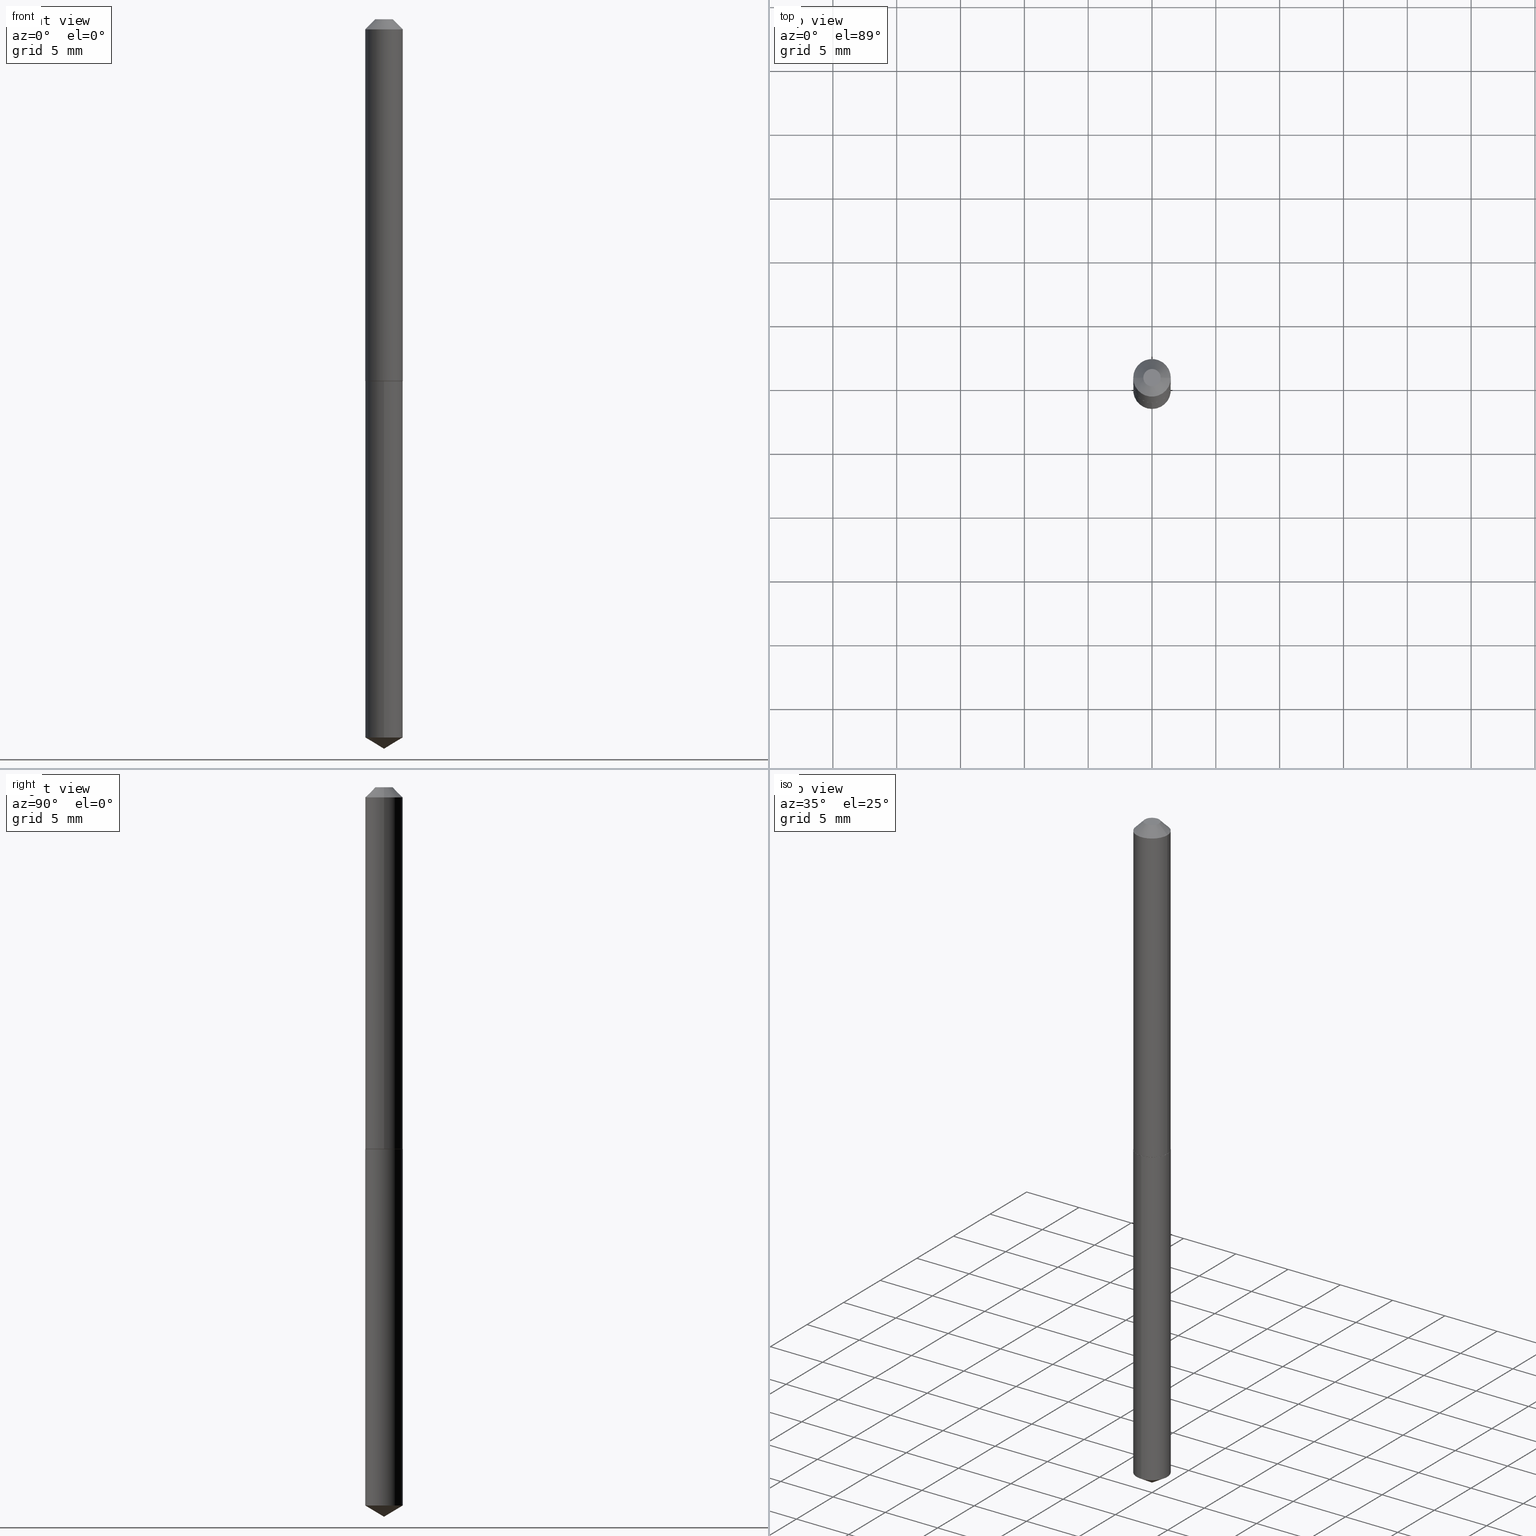
[diagram: canonical four-view strip — front | top / right | iso, engineering-drawing reading convention]
A machine part, canonical four-view strip (front | top / right | iso — engineering-drawing reading convention). The complete STEP part file that produces these views, byte-faithful:
ISO-10303-21;
HEADER;
FILE_DESCRIPTION (( 'STEP AP203' ),
    '1' );
FILE_NAME ('51032.STEP',
    '2024-04-22T18:15:48',
    ( '' ),
    ( '' ),
    'SwSTEP 2.0',
    'SolidWorks 2023',
    '' );
FILE_SCHEMA (( 'CONFIG_CONTROL_DESIGN' ));
ENDSEC;

DATA;
#1 =( NAMED_UNIT ( * ) SI_UNIT ( $, .STERADIAN. ) SOLID_ANGLE_UNIT ( ) );
#2 = DATE_TIME_ROLE ( 'classification_date' ) ;
#3 = FACE_OUTER_BOUND ( 'NONE', #266, .T. ) ;
#4 = ORIENTED_EDGE ( 'NONE', *, *, #231, .F. ) ;
#5 = ADVANCED_FACE ( 'NONE', ( #232 ), #302, .T. ) ;
#6 = VECTOR ( 'NONE', #119, 39.37007874015748143 ) ;
#7 = DIRECTION ( 'NONE',  ( 1.000000000000000000, -6.982962677686265922E-15, 0.000000000000000000 ) ) ;
#8 = LOCAL_TIME ( 14, 15, 48.00000000000000000, #194 ) ;
#9 = EDGE_CURVE ( 'NONE', #322, #239, #226, .T. ) ;
#10 = ORIENTED_EDGE ( 'NONE', *, *, #304, .T. ) ;
#11 = DIRECTION ( 'NONE',  ( -2.445468806185136877E-29, 3.491481338843145188E-15, 1.000000000000000000 ) ) ;
#12 = ORIENTED_EDGE ( 'NONE', *, *, #155, .T. ) ;
#13 = DIRECTION ( 'NONE',  ( 1.000000000000000000, -6.982962677686264344E-15, 0.000000000000000000 ) ) ;
#14 = APPLICATION_CONTEXT ( 'configuration controlled 3d designs of mechanical parts and assemblies' ) ;
#15 = ADVANCED_FACE ( 'NONE', ( #107 ), #58, .T. ) ;
#16 = DIRECTION ( 'NONE',  ( -0.7071067811865451302, 2.468850131082231817E-15, -0.7071067811865499042 ) ) ;
#17 = CONICAL_SURFACE ( 'NONE', #53, 65.52281426576863055, 1.029744258676655866 ) ;
#18 = ORIENTED_EDGE ( 'NONE', *, *, #188, .F. ) ;
#19 = LOCAL_TIME ( 14, 15, 48.00000000000000000, #126 ) ;
#20 = AXIS2_PLACEMENT_3D ( 'NONE', #179, #325, #305 ) ;
#21 = DIRECTION ( 'NONE',  ( -2.445468806185136597E-29, 3.491481338843145583E-15, 1.000000000000000000 ) ) ;
#22 = ORIENTED_EDGE ( 'NONE', *, *, #237, .T. ) ;
#23 = DIMENSIONAL_EXPONENTS ( 1.000000000000000000, 0.000000000000000000, 0.000000000000000000, 0.000000000000000000, 0.000000000000000000, 0.000000000000000000, 0.000000000000000000 ) ;
#24 = SHAPE_DEFINITION_REPRESENTATION ( #76, #360 ) ;
#25 = LINE ( 'NONE', #284, #191 ) ;
#26 = CALENDAR_DATE ( 2024, 22, 4 ) ;
#27 = DIRECTION ( 'NONE',  ( -6.982962677686264344E-15, -1.000000000000000000, 3.468864327941583565E-15 ) ) ;
#28 = APPROVAL_PERSON_ORGANIZATION ( #48, #81, #122 ) ;
#29 = DIRECTION ( 'NONE',  ( 1.000000000000000000, 0.000000000000000000, 0.000000000000000000 ) ) ;
#30 = DIRECTION ( 'NONE',  ( 0.7071067811864267805, -2.468850131080992517E-15, 0.7071067811866682540 ) ) ;
#31 =( LENGTH_UNIT ( ) NAMED_UNIT ( * ) SI_UNIT ( $, .METRE. ) );
#32 = VECTOR ( 'NONE', #11, 39.37007874015748143 ) ;
#33 = CIRCLE ( 'NONE', #352, 0.05750000000000014128 ) ;
#34 = SECURITY_CLASSIFICATION_LEVEL ( 'unclassified' ) ;
#35 = DIRECTION ( 'NONE',  ( -1.000000000000000000, 6.982962677686266711E-15, 0.000000000000000000 ) ) ;
#36 = VERTEX_POINT ( 'NONE', #74 ) ;
#37 = ADVANCED_FACE ( 'NONE', ( #66 ), #168, .T. ) ;
#38 = DIRECTION ( 'NONE',  ( -1.000000000000000000, 6.982962677686265922E-15, -4.876176775795935793E-29 ) ) ;
#39 = ORIENTED_EDGE ( 'NONE', *, *, #336, .T. ) ;
#40 = CC_DESIGN_PERSON_AND_ORGANIZATION_ASSIGNMENT ( #282, #118, ( #116 ) ) ;
#41 = DIRECTION ( 'NONE',  ( 2.438088387897960049E-29, -3.491481338843145188E-15, -1.000000000000000000 ) ) ;
#42 = AXIS2_PLACEMENT_3D ( 'NONE', #89, #283, #220 ) ;
#43 = DIRECTION ( 'NONE',  ( -2.445398351261919624E-29, 3.491582234303237640E-15, 1.000000000000000000 ) ) ;
#44 = ADVANCED_FACE ( 'NONE', ( #3 ), #139, .T. ) ;
#45 = ORIENTED_EDGE ( 'NONE', *, *, #326, .T. ) ;
#46 = EDGE_LOOP ( 'NONE', ( #205, #319, #347, #47 ) ) ;
#47 = ORIENTED_EDGE ( 'NONE', *, *, #304, .F. ) ;
#48 = PERSON_AND_ORGANIZATION ( #221, #184 ) ;
#49 = AXIS2_PLACEMENT_3D ( 'NONE', #368, #166, #291 ) ;
#50 = AXIS2_PLACEMENT_3D ( 'NONE', #270, #381, #110 ) ;
#51 = ADVANCED_FACE ( 'NONE', ( #258 ), #17, .T. ) ;
#52 = CARTESIAN_POINT ( 'NONE',  ( 2.727920453299520488E-29, -3.894747433479529868E-15, -1.115500000000000158 ) ) ;
#53 = AXIS2_PLACEMENT_3D ( 'NONE', #234, #321, #344 ) ;
#54 = CIRCLE ( 'NONE', #42, 0.05800000000000000294 ) ;
#55 = CALENDAR_DATE ( 2024, 22, 4 ) ;
#56 = CARTESIAN_POINT ( 'NONE',  ( 7.642090019328602662E-31, -1.091087918388490267E-16, -0.03125000000000020817 ) ) ;
#57 = ORIENTED_EDGE ( 'NONE', *, *, #336, .F. ) ;
#58 = CONICAL_SURFACE ( 'NONE', #91, 0.05800000000000014172, 0.7853981633972775267 ) ;
#59 = CC_DESIGN_SECURITY_CLASSIFICATION ( #178, ( #320 ) ) ;
#60 = PERSON_AND_ORGANIZATION ( #221, #184 ) ;
#61 = PERSON_AND_ORGANIZATION_ROLE ( 'design_owner' ) ;
#62 = CIRCLE ( 'NONE', #215, 0.05800000000000014172 ) ;
#63 = DIRECTION ( 'NONE',  ( -1.000000000000000000, 6.982962677686266711E-15, 0.000000000000000000 ) ) ;
#64 = VERTEX_POINT ( 'NONE', #300 ) ;
#65 = EDGE_CURVE ( 'NONE', #315, #104, #249, .T. ) ;
#66 = FACE_OUTER_BOUND ( 'NONE', #371, .T. ) ;
#67 = CARTESIAN_POINT ( 'NONE',  ( 7.642090019328602662E-31, -1.091087918388490267E-16, -0.03125000000000020817 ) ) ;
#68 = VERTEX_POINT ( 'NONE', #143 ) ;
#69 = DIRECTION ( 'NONE',  ( -2.445468806185136597E-29, 3.491481338843145583E-15, 1.000000000000000000 ) ) ;
#70 = ORIENTED_EDGE ( 'NONE', *, *, #366, .F. ) ;
#71 = AXIS2_PLACEMENT_3D ( 'NONE', #207, #43, #293 ) ;
#72 = DIRECTION ( 'NONE',  ( 2.445468806185136597E-29, -3.491481338843145583E-15, -1.000000000000000000 ) ) ;
#73 = EDGE_LOOP ( 'NONE', ( #109, #301, #229, #260 ) ) ;
#74 = CARTESIAN_POINT ( 'NONE',  ( -4.050118353057761076E-16, -0.05800000000000389566, -1.116000000000000103 ) ) ;
#75 = ORIENTED_EDGE ( 'NONE', *, *, #366, .T. ) ;
#76 = PRODUCT_DEFINITION_SHAPE ( 'NONE', 'NONE',  #116 ) ;
#77 = CARTESIAN_POINT ( 'NONE',  ( 5.417002991141352928E-29, -7.734266080612855846E-15, -2.215150084096401795 ) ) ;
#78 = DIRECTION ( 'NONE',  ( -2.445468806185136597E-29, 3.491481338843145583E-15, 1.000000000000000000 ) ) ;
#79 = LOCAL_TIME ( 14, 15, 48.00000000000000000, #156 ) ;
#80 = DIRECTION ( 'NONE',  ( 1.000000000000000000, -6.982962677686265922E-15, 0.000000000000000000 ) ) ;
#81 = APPROVAL ( #95, 'UNSPECIFIED' ) ;
#82 = DIRECTION ( 'NONE',  ( 1.000000000000000000, -6.982962677686264344E-15, 0.000000000000000000 ) ) ;
#83 =( CONVERSION_BASED_UNIT ( 'INCH', #307 ) LENGTH_UNIT ( ) NAMED_UNIT ( #23 ) );
#84 = ADVANCED_FACE ( 'NONE', ( #134 ), #342, .F. ) ;
#85 = EDGE_LOOP ( 'NONE', ( #199, #75, #10, #298 ) ) ;
#86 = APPROVAL_PERSON_ORGANIZATION ( #217, #373, #334 ) ;
#87 = APPROVAL_ROLE ( '' ) ;
#88 = APPROVAL_DATE_TIME ( #361, #195 ) ;
#89 = CARTESIAN_POINT ( 'NONE',  ( 2.729143187702612729E-29, -3.896493174148951371E-15, -1.116000000000000103 ) ) ;
#90 = PERSON_AND_ORGANIZATION ( #221, #184 ) ;
#91 = AXIS2_PLACEMENT_3D ( 'NONE', #316, #69, #7 ) ;
#92 = CC_DESIGN_APPROVAL ( #373, ( #116 ) ) ;
#93 = DIRECTION ( 'NONE',  ( 0.000000000000000000, 0.000000000000000000, 1.000000000000000000 ) ) ;
#94 = FACE_OUTER_BOUND ( 'NONE', #169, .T. ) ;
#95 = APPROVAL_STATUS ( 'not_yet_approved' ) ;
#96 = CC_DESIGN_DATE_AND_TIME_ASSIGNMENT ( #264, #2, ( #178 ) ) ;
#97 = DIRECTION ( 'NONE',  ( 1.000000000000000000, -6.982962677686266711E-15, 0.000000000000000000 ) ) ;
#98 = LINE ( 'NONE', #297, #124 ) ;
#99 = CIRCLE ( 'NONE', #183, 0.05800000000000000294 ) ;
#100 = AXIS2_PLACEMENT_3D ( 'NONE', #390, #128, #339 ) ;
#101 = DIRECTION ( 'NONE',  ( -2.438088387897960049E-29, 3.491481338843145188E-15, 1.000000000000000000 ) ) ;
#102 = ORIENTED_EDGE ( 'NONE', *, *, #388, .F. ) ;
#103 = DIRECTION ( 'NONE',  ( 1.000000000000000000, -6.982962677686265922E-15, 4.876176775795935793E-29 ) ) ;
#104 = VERTEX_POINT ( 'NONE', #374 ) ;
#105 = CARTESIAN_POINT ( 'NONE',  ( 7.642090019328602662E-31, -1.091087918388490267E-16, -0.03125000000000020817 ) ) ;
#106 = VERTEX_POINT ( 'NONE', #141 ) ;
#107 = FACE_OUTER_BOUND ( 'NONE', #350, .T. ) ;
#108 = CIRCLE ( 'NONE', #20, 0.05800000000000000294 ) ;
#109 = ORIENTED_EDGE ( 'NONE', *, *, #113, .F. ) ;
#110 = DIRECTION ( 'NONE',  ( -6.982962677686265922E-15, -1.000000000000000000, 2.355041373848502747E-15 ) ) ;
#111 = CARTESIAN_POINT ( 'NONE',  ( 4.121147867408853444E-16, 0.05799999999999611022, -1.116000000000000325 ) ) ;
#112 = ADVANCED_FACE ( 'NONE', ( #228 ), #171, .T. ) ;
#113 = EDGE_CURVE ( 'NONE', #315, #106, #98, .T. ) ;
#114 = LINE ( 'NONE', #244, #6 ) ;
#115 = VECTOR ( 'NONE', #254, 39.37007874015748143 ) ;
#116 = PRODUCT_DEFINITION ( 'UNKNOWN', '', #320, #227 ) ;
#117 = CARTESIAN_POINT ( 'NONE',  ( -0.05750000000000014128, -3.485281873912781806E-15, -1.116000000000000325 ) ) ;
#118 = PERSON_AND_ORGANIZATION_ROLE ( 'creator' ) ;
#119 = DIRECTION ( 'NONE',  ( 0.7071067811865451302, -7.319954787623248157E-15, -0.7071067811865499042 ) ) ;
#120 = EDGE_LOOP ( 'NONE', ( #382, #202 ) ) ;
#121 = CC_DESIGN_PERSON_AND_ORGANIZATION_ASSIGNMENT ( #90, #173, ( #320 ) ) ;
#122 = APPROVAL_ROLE ( '' ) ;
#123 = DIRECTION ( 'NONE',  ( -2.445468806185136597E-29, 3.491481338843145583E-15, 1.000000000000000000 ) ) ;
#124 = VECTOR ( 'NONE', #349, 39.37007874015748143 ) ;
#125 = CIRCLE ( 'NONE', #147, 0.05800000000000014172 ) ;
#126 = COORDINATED_UNIVERSAL_TIME_OFFSET ( 5, 0, .BEHIND. ) ;
#127 = PERSON_AND_ORGANIZATION_ROLE ( 'creator' ) ;
#128 = DIRECTION ( 'NONE',  ( -2.445468806185136597E-29, 3.491481338843145583E-15, 1.000000000000000000 ) ) ;
#129 = CARTESIAN_POINT ( 'NONE',  ( -0.05800000000000000294, -1.589813325918329827E-15, -0.03125000000000020817 ) ) ;
#130 = ORIENTED_EDGE ( 'NONE', *, *, #329, .T. ) ;
#131 = CONICAL_SURFACE ( 'NONE', #327, 0.05800000000000000294, 0.7853981633974449483 ) ;
#132 = CC_DESIGN_APPROVAL ( #195, ( #320 ) ) ;
#133 = MANIFOLD_SOLID_BREP ( 'Body-Move/Copy2[1]', #378 ) ;
#134 = FACE_OUTER_BOUND ( 'NONE', #140, .T. ) ;
#135 = DIRECTION ( 'NONE',  ( 1.000000000000000000, -6.982962677686266711E-15, 4.876176775795935793E-29 ) ) ;
#136 = ORIENTED_EDGE ( 'NONE', *, *, #9, .F. ) ;
#137 = AXIS2_PLACEMENT_3D ( 'NONE', #256, #367, #376 ) ;
#138 = APPROVAL_PERSON_ORGANIZATION ( #185, #195, #87 ) ;
#139 = CYLINDRICAL_SURFACE ( 'NONE', #337, 0.05800000000000007233 ) ;
#140 = EDGE_LOOP ( 'NONE', ( #317, #208 ) ) ;
#141 = CARTESIAN_POINT ( 'NONE',  ( -0.05800000000000014172, -3.482632646738670605E-15, -1.115500000000000158 ) ) ;
#142 = ORIENTED_EDGE ( 'NONE', *, *, #231, .T. ) ;
#143 = CARTESIAN_POINT ( 'NONE',  ( 0.02675000000000000294, -3.452679985749932326E-16, -2.449293598276105174E-19 ) ) ;
#144 = PRODUCT ( '51032', '51032', '', ( #222 ) ) ;
#145 = FACE_OUTER_BOUND ( 'NONE', #46, .T. ) ;
#146 = DIRECTION ( 'NONE',  ( 1.000000000000000000, -6.982962677686265922E-15, 0.000000000000000000 ) ) ;
#147 = AXIS2_PLACEMENT_3D ( 'NONE', #384, #152, #211 ) ;
#148 = ORIENTED_EDGE ( 'NONE', *, *, #363, .F. ) ;
#149 = ADVANCED_FACE ( 'NONE', ( #346 ), #201, .F. ) ;
#150 = CARTESIAN_POINT ( 'NONE',  ( 5.989671091818642381E-48, -8.551662891793931527E-34, -2.449293598294701954E-19 ) ) ;
#151 = DIRECTION ( 'NONE',  ( 1.000000000000000000, -6.982962677686266711E-15, 0.000000000000000000 ) ) ;
#152 = DIRECTION ( 'NONE',  ( -2.445468806185136597E-29, 3.491481338843145583E-15, 1.000000000000000000 ) ) ;
#153 = VECTOR ( 'NONE', #180, 39.37007874015748854 ) ;
#154 = DIRECTION ( 'NONE',  ( -2.445468806185136597E-29, 3.491481338843145583E-15, 1.000000000000000000 ) ) ;
#155 = EDGE_CURVE ( 'NONE', #106, #377, #296, .T. ) ;
#156 = COORDINATED_UNIVERSAL_TIME_OFFSET ( 5, 0, .BEHIND. ) ;
#157 = CARTESIAN_POINT ( 'NONE',  ( 0.05800000000000014172, -4.299759268785333684E-15, -1.115500000000000158 ) ) ;
#158 = VERTEX_POINT ( 'NONE', #265 ) ;
#159 = AXIS2_PLACEMENT_3D ( 'NONE', #359, #223, #252 ) ;
#160 = DATE_AND_TIME ( #26, #8 ) ;
#161 = ADVANCED_FACE ( 'NONE', ( #204 ), #131, .T. ) ;
#162 = CC_DESIGN_PERSON_AND_ORGANIZATION_ASSIGNMENT ( #200, #318, ( #178 ) ) ;
#163 = PLANE ( 'NONE',  #159 ) ;
#164 = ADVANCED_FACE ( 'NONE', ( #197 ), #190, .T. ) ;
#165 = CONICAL_SURFACE ( 'NONE', #314, 65.52281426576863055, 1.029744258676655866 ) ;
#166 = DIRECTION ( 'NONE',  ( -2.445468806185136597E-29, 3.491481338843145583E-15, 1.000000000000000000 ) ) ;
#167 = ORIENTED_EDGE ( 'NONE', *, *, #388, .T. ) ;
#168 = CYLINDRICAL_SURFACE ( 'NONE', #49, 0.05800000000000007233 ) ;
#169 = EDGE_LOOP ( 'NONE', ( #177, #167, #136 ) ) ;
#170 = AXIS2_PLACEMENT_3D ( 'NONE', #225, #41, #38 ) ;
#171 = CYLINDRICAL_SURFACE ( 'NONE', #137, 0.05800000000000000294 ) ;
#172 = UNCERTAINTY_MEASURE_WITH_UNIT (LENGTH_MEASURE( 1.000000000000000082E-05 ), #83, 'distance_accuracy_value', 'NONE');
#173 = PERSON_AND_ORGANIZATION_ROLE ( 'design_supplier' ) ;
#174 = DIRECTION ( 'NONE',  ( -2.445468806185136597E-29, 3.491481338843145583E-15, 1.000000000000000000 ) ) ;
#175 = ORIENTED_EDGE ( 'NONE', *, *, #113, .T. ) ;
#176 = DIRECTION ( 'NONE',  ( 2.445468806185136597E-29, -3.491481338843145583E-15, -1.000000000000000000 ) ) ;
#177 = ORIENTED_EDGE ( 'NONE', *, *, #237, .F. ) ;
#178 = SECURITY_CLASSIFICATION ( '', '', #34 ) ;
#179 = CARTESIAN_POINT ( 'NONE',  ( 2.729143187702612729E-29, -3.896493174148951371E-15, -1.116000000000000103 ) ) ;
#180 = DIRECTION ( 'NONE',  ( -5.985567269335946802E-15, -0.8571673007021111124, 0.5150380749100559319 ) ) ;
#181 = EDGE_LOOP ( 'NONE', ( #102, #22, #70 ) ) ;
#182 = DIRECTION ( 'NONE',  ( 1.000000000000000000, -6.982962677686265922E-15, 4.876188278482911222E-29 ) ) ;
#183 = AXIS2_PLACEMENT_3D ( 'NONE', #56, #78, #151 ) ;
#184 = ORGANIZATION ( 'UNSPECIFIED', 'UNSPECIFIED', '' ) ;
#185 = PERSON_AND_ORGANIZATION ( #221, #184 ) ;
#186 = DIRECTION ( 'NONE',  ( -2.445398351261919624E-29, 3.491582234303238035E-15, 1.000000000000000000 ) ) ;
#187 = EDGE_CURVE ( 'NONE', #377, #375, #99, .T. ) ;
#188 = EDGE_CURVE ( 'NONE', #68, #375, #114, .T. ) ;
#189 = APPLICATION_PROTOCOL_DEFINITION ( 'international standard', 'config_control_design', 1994, #14 ) ;
#190 = CONICAL_SURFACE ( 'NONE', #348, 0.05800000000000014172, 0.7853981633972775267 ) ;
#191 = VECTOR ( 'NONE', #219, 39.37007874015748143 ) ;
#192 = DATE_TIME_ROLE ( 'creation_date' ) ;
#193 = LINE ( 'NONE', #311, #358 ) ;
#194 = COORDINATED_UNIVERSAL_TIME_OFFSET ( 5, 0, .BEHIND. ) ;
#195 = APPROVAL ( #385, 'UNSPECIFIED' ) ;
#196 = AXIS2_PLACEMENT_3D ( 'NONE', #150, #21, #182 ) ;
#197 = FACE_OUTER_BOUND ( 'NONE', #73, .T. ) ;
#198 = VERTEX_POINT ( 'NONE', #246 ) ;
#199 = ORIENTED_EDGE ( 'NONE', *, *, #230, .F. ) ;
#200 = PERSON_AND_ORGANIZATION ( #221, #184 ) ;
#201 = PLANE ( 'NONE',  #170 ) ;
#202 = ORIENTED_EDGE ( 'NONE', *, *, #303, .T. ) ;
#203 = CLOSED_SHELL ( 'NONE', ( #161, #37, #15, #84, #164, #44, #5, #149 ) ) ;
#204 = FACE_OUTER_BOUND ( 'NONE', #277, .T. ) ;
#205 = ORIENTED_EDGE ( 'NONE', *, *, #9, .T. ) ;
#206 = CARTESIAN_POINT ( 'NONE',  ( 2.729143187702613290E-29, -3.896493174148952160E-15, -1.116000000000000325 ) ) ;
#207 = CARTESIAN_POINT ( 'NONE',  ( 5.417002991141352928E-29, -7.734266080612855846E-15, -2.215150084096401795 ) ) ;
#208 = ORIENTED_EDGE ( 'NONE', *, *, #65, .F. ) ;
#209 = CARTESIAN_POINT ( 'NONE',  ( 0.05800000000000000294, -5.141206271446525225E-16, -0.03125000000000020817 ) ) ;
#210 = LOCAL_TIME ( 14, 15, 48.00000000000000000, #287 ) ;
#211 = DIRECTION ( 'NONE',  ( 1.000000000000000000, -6.982962677686265922E-15, 0.000000000000000000 ) ) ;
#212 = CYLINDRICAL_SURFACE ( 'NONE', #50, 0.05800000000000000294 ) ;
#213 = ORIENTED_EDGE ( 'NONE', *, *, #187, .F. ) ;
#214 = PRODUCT_RELATED_PRODUCT_CATEGORY ( 'detail', '', ( #144 ) ) ;
#215 = AXIS2_PLACEMENT_3D ( 'NONE', #52, #355, #80 ) ;
#216 = FACE_OUTER_BOUND ( 'NONE', #324, .T. ) ;
#217 = PERSON_AND_ORGANIZATION ( #221, #184 ) ;
#218 = ORIENTED_EDGE ( 'NONE', *, *, #380, .F. ) ;
#219 = DIRECTION ( 'NONE',  ( 6.090539988449784746E-15, 0.8571673007021146651, 0.5150380749100500477 ) ) ;
#220 = DIRECTION ( 'NONE',  ( -6.982962677686265922E-15, -1.000000000000000000, 2.355041373848502747E-15 ) ) ;
#221 = PERSON ( 'UNSPECIFIED', 'UNSPECIFIED', 'UNSPECIFIED', ('UNSPECIFIED'), ('UNSPECIFIED'), ('UNSPECIFIED') ) ;
#222 = MECHANICAL_CONTEXT ( 'NONE', #330, 'mechanical' ) ;
#223 = DIRECTION ( 'NONE',  ( 2.445398351261918783E-29, -3.491582234303238035E-15, -1.000000000000000000 ) ) ;
#224 = APPROVAL_DATE_TIME ( #332, #81 ) ;
#225 = CARTESIAN_POINT ( 'NONE',  ( 2.994835545909321190E-48, -4.275831445896965764E-34, -1.224646799147350977E-19 ) ) ;
#226 = CIRCLE ( 'NONE', #71, 0.05800000000000000294 ) ;
#227 = DESIGN_CONTEXT ( 'detailed design', #14, 'design' ) ;
#228 = FACE_OUTER_BOUND ( 'NONE', #85, .T. ) ;
#229 = ORIENTED_EDGE ( 'NONE', *, *, #380, .T. ) ;
#230 = EDGE_CURVE ( 'NONE', #239, #64, #242, .T. ) ;
#231 = EDGE_CURVE ( 'NONE', #369, #377, #383, .T. ) ;
#232 = FACE_OUTER_BOUND ( 'NONE', #345, .T. ) ;
#233 = CC_DESIGN_PERSON_AND_ORGANIZATION_ASSIGNMENT ( #335, #127, ( #320 ) ) ;
#234 = CARTESIAN_POINT ( 'NONE',  ( -9.077330072219942621E-28, 1.296079200644046348E-13, 37.12007874015748143 ) ) ;
#235 = ORIENTED_EDGE ( 'NONE', *, *, #187, .T. ) ;
#236 =( GEOMETRIC_REPRESENTATION_CONTEXT ( 3 ) GLOBAL_UNCERTAINTY_ASSIGNED_CONTEXT ( ( #172 ) ) GLOBAL_UNIT_ASSIGNED_CONTEXT ( ( #83, #310, #1 ) ) REPRESENTATION_CONTEXT ( 'NONE', 'WORKASPACE' ) );
#237 = EDGE_CURVE ( 'NONE', #158, #322, #271, .T. ) ;
#238 = CARTESIAN_POINT ( 'NONE',  ( -0.05800000000000007233, 4.121147867408586217E-16, -2.852982352347848756E-30 ) ) ;
#239 = VERTEX_POINT ( 'NONE', #356 ) ;
#240 = DIRECTION ( 'NONE',  ( -6.982962677686265922E-15, -1.000000000000000000, 4.710082747697005495E-15 ) ) ;
#241 = LOCAL_TIME ( 14, 15, 48.00000000000000000, #340 ) ;
#242 = LINE ( 'NONE', #111, #274 ) ;
#243 = DIRECTION ( 'NONE',  ( -2.445398351261919624E-29, 3.491582234303237640E-15, 1.000000000000000000 ) ) ;
#244 = CARTESIAN_POINT ( 'NONE',  ( 0.05800000000000000294, -5.070176757095978650E-16, -0.03125000000000020817 ) ) ;
#245 = DATE_AND_TIME ( #55, #79 ) ;
#246 = CARTESIAN_POINT ( 'NONE',  ( 0.05800000000000014172, -4.299759268785333684E-15, -1.115500000000000158 ) ) ;
#247 = APPLICATION_PROTOCOL_DEFINITION ( 'international standard', 'config_control_design', 1994, #330 ) ;
#248 = EDGE_CURVE ( 'NONE', #375, #377, #365, .T. ) ;
#249 = CIRCLE ( 'NONE', #281, 0.05750000000000014128 ) ;
#250 = ADVANCED_FACE ( 'NONE', ( #216 ), #163, .F. ) ;
#251 = CALENDAR_DATE ( 2024, 22, 4 ) ;
#252 = DIRECTION ( 'NONE',  ( 6.982962677686265922E-15, 1.000000000000000000, -3.491582234303238035E-15 ) ) ;
#253 = LINE ( 'NONE', #389, #115 ) ;
#254 = DIRECTION ( 'NONE',  ( -2.445468806185136877E-29, 3.491481338843145188E-15, 1.000000000000000000 ) ) ;
#255 = ORIENTED_EDGE ( 'NONE', *, *, #364, .T. ) ;
#256 = CARTESIAN_POINT ( 'NONE',  ( 2.729143187702612729E-29, -3.896493174148951371E-15, -1.116000000000000103 ) ) ;
#257 = ADVANCED_FACE ( 'NONE', ( #94 ), #165, .T. ) ;
#258 = FACE_OUTER_BOUND ( 'NONE', #181, .T. ) ;
#259 = EDGE_CURVE ( 'NONE', #64, #36, #54, .T. ) ;
#260 = ORIENTED_EDGE ( 'NONE', *, *, #326, .F. ) ;
#261 = AXIS2_PLACEMENT_3D ( 'NONE', #77, #243, #240 ) ;
#262 = CARTESIAN_POINT ( 'NONE',  ( 2.729143187702613290E-29, -3.896493174148952160E-15, -1.116000000000000325 ) ) ;
#263 = ORIENTED_EDGE ( 'NONE', *, *, #188, .T. ) ;
#264 = DATE_AND_TIME ( #290, #210 ) ;
#265 = CARTESIAN_POINT ( 'NONE',  ( 5.502146290339319084E-29, -7.856060027182285183E-15, -2.250000000000000000 ) ) ;
#266 = EDGE_LOOP ( 'NONE', ( #292, #45, #294, #213 ) ) ;
#267 = CARTESIAN_POINT ( 'NONE',  ( 8.779036989851792376E-30, -6.547573488000527292E-15, -1.116000000000000325 ) ) ;
#268 = ORIENTED_EDGE ( 'NONE', *, *, #259, .T. ) ;
#269 = VECTOR ( 'NONE', #30, 39.37007874015748143 ) ;
#270 = CARTESIAN_POINT ( 'NONE',  ( 2.729143187702612729E-29, -3.896493174148951371E-15, -1.116000000000000103 ) ) ;
#271 = LINE ( 'NONE', #354, #153 ) ;
#272 = MANIFOLD_SOLID_BREP ( 'Body-Move/Copy2[2]', #203 ) ;
#273 = DIRECTION ( 'NONE',  ( -2.445468806185136597E-29, 3.491481338843145583E-15, 1.000000000000000000 ) ) ;
#274 = VECTOR ( 'NONE', #186, 39.37007874015748143 ) ;
#275 = AXIS2_PLACEMENT_3D ( 'NONE', #285, #93, #29 ) ;
#276 = CARTESIAN_POINT ( 'NONE',  ( 2.727920453299520488E-29, -3.894747433479529868E-15, -1.115500000000000158 ) ) ;
#277 = EDGE_LOOP ( 'NONE', ( #288, #263, #313, #4 ) ) ;
#278 = CARTESIAN_POINT ( 'NONE',  ( -0.02675000000000000294, 2.413486475475311021E-16, -2.449293598309669800E-19 ) ) ;
#279 = LINE ( 'NONE', #157, #269 ) ;
#280 = APPROVAL_DATE_TIME ( #160, #373 ) ;
#281 = AXIS2_PLACEMENT_3D ( 'NONE', #262, #174, #13 ) ;
#282 = PERSON_AND_ORGANIZATION ( #221, #184 ) ;
#283 = DIRECTION ( 'NONE',  ( -2.445398351261919624E-29, 3.491582234303237640E-15, 1.000000000000000000 ) ) ;
#284 = CARTESIAN_POINT ( 'NONE',  ( 5.502304924672072596E-29, -7.855834828515360241E-15, -2.250000000000000000 ) ) ;
#285 = CARTESIAN_POINT ( 'NONE',  ( 0.000000000000000000, 0.000000000000000000, 0.000000000000000000 ) ) ;
#286 = CC_DESIGN_APPROVAL ( #81, ( #178 ) ) ;
#287 = COORDINATED_UNIVERSAL_TIME_OFFSET ( 5, 0, .BEHIND. ) ;
#288 = ORIENTED_EDGE ( 'NONE', *, *, #303, .F. ) ;
#289 = CALENDAR_DATE ( 2024, 22, 4 ) ;
#290 = CALENDAR_DATE ( 2024, 22, 4 ) ;
#291 = DIRECTION ( 'NONE',  ( 1.000000000000000000, -6.982962677686266711E-15, 4.876176775795935793E-29 ) ) ;
#292 = ORIENTED_EDGE ( 'NONE', *, *, #155, .F. ) ;
#293 = DIRECTION ( 'NONE',  ( -6.982962677686265922E-15, -1.000000000000000000, 4.710082747697005495E-15 ) ) ;
#294 = ORIENTED_EDGE ( 'NONE', *, *, #387, .T. ) ;
#295 = VECTOR ( 'NONE', #16, 39.37007874015748143 ) ;
#296 = LINE ( 'NONE', #238, #32 ) ;
#297 = CARTESIAN_POINT ( 'NONE',  ( -0.05800000000000014172, -3.482632646738670605E-15, -1.115500000000000158 ) ) ;
#298 = ORIENTED_EDGE ( 'NONE', *, *, #259, .F. ) ;
#299 = CARTESIAN_POINT ( 'NONE',  ( -4.050118353057491877E-16, -0.05800000000000771899, -2.215150084096401351 ) ) ;
#300 = CARTESIAN_POINT ( 'NONE',  ( 4.121147867409124122E-16, 0.05799999999999611022, -1.116000000000000325 ) ) ;
#301 = ORIENTED_EDGE ( 'NONE', *, *, #65, .T. ) ;
#302 = CONICAL_SURFACE ( 'NONE', #357, 0.05800000000000000294, 0.7853981633974449483 ) ;
#303 = EDGE_CURVE ( 'NONE', #68, #369, #328, .T. ) ;
#304 = EDGE_CURVE ( 'NONE', #322, #36, #193, .T. ) ;
#305 = DIRECTION ( 'NONE',  ( -6.982962677686265922E-15, -1.000000000000000000, 2.355041373848502747E-15 ) ) ;
#306 = AXIS2_PLACEMENT_3D ( 'NONE', #267, #101, #103 ) ;
#307 = LENGTH_MEASURE_WITH_UNIT ( LENGTH_MEASURE( 0.02539999999999999897 ), #31 );
#308 = ORIENTED_EDGE ( 'NONE', *, *, #387, .F. ) ;
#309 = DIRECTION ( 'NONE',  ( -2.445398351261919624E-29, 3.491582234303237640E-15, 1.000000000000000000 ) ) ;
#310 =( NAMED_UNIT ( * ) PLANE_ANGLE_UNIT ( ) SI_UNIT ( $, .RADIAN. ) );
#311 = CARTESIAN_POINT ( 'NONE',  ( -4.050118353057761076E-16, -0.05800000000000389566, -1.116000000000000103 ) ) ;
#312 = CC_DESIGN_DATE_AND_TIME_ASSIGNMENT ( #245, #192, ( #116 ) ) ;
#313 = ORIENTED_EDGE ( 'NONE', *, *, #248, .T. ) ;
#314 = AXIS2_PLACEMENT_3D ( 'NONE', #362, #309, #27 ) ;
#315 = VERTEX_POINT ( 'NONE', #117 ) ;
#316 = CARTESIAN_POINT ( 'NONE',  ( 2.727920453299520488E-29, -3.894747433479529868E-15, -1.115500000000000158 ) ) ;
#317 = ORIENTED_EDGE ( 'NONE', *, *, #364, .F. ) ;
#318 = PERSON_AND_ORGANIZATION_ROLE ( 'classification_officer' ) ;
#319 = ORIENTED_EDGE ( 'NONE', *, *, #230, .T. ) ;
#320 = PRODUCT_DEFINITION_FORMATION_WITH_SPECIFIED_SOURCE ( 'ANY', '', #144, .NOT_KNOWN. ) ;
#321 = DIRECTION ( 'NONE',  ( -2.445398351261919624E-29, 3.491582234303237640E-15, 1.000000000000000000 ) ) ;
#322 = VERTEX_POINT ( 'NONE', #299 ) ;
#323 = CARTESIAN_POINT ( 'NONE',  ( 0.000000000000000000, 0.000000000000000000, 0.000000000000000000 ) ) ;
#324 = EDGE_LOOP ( 'NONE', ( #130, #268 ) ) ;
#325 = DIRECTION ( 'NONE',  ( -2.445398351261919624E-29, 3.491582234303237640E-15, 1.000000000000000000 ) ) ;
#326 = EDGE_CURVE ( 'NONE', #106, #198, #62, .T. ) ;
#327 = AXIS2_PLACEMENT_3D ( 'NONE', #341, #72, #63 ) ;
#328 = CIRCLE ( 'NONE', #100, 0.02675000000000000294 ) ;
#329 = EDGE_CURVE ( 'NONE', #36, #64, #108, .T. ) ;
#330 = APPLICATION_CONTEXT ( 'configuration controlled 3d designs of mechanical parts and assemblies' ) ;
#331 = CC_DESIGN_PERSON_AND_ORGANIZATION_ASSIGNMENT ( #60, #61, ( #144 ) ) ;
#332 = DATE_AND_TIME ( #289, #241 ) ;
#333 = CIRCLE ( 'NONE', #196, 0.02675000000000000294 ) ;
#334 = APPROVAL_ROLE ( '' ) ;
#335 = PERSON_AND_ORGANIZATION ( #221, #184 ) ;
#336 = EDGE_CURVE ( 'NONE', #198, #106, #125, .T. ) ;
#337 = AXIS2_PLACEMENT_3D ( 'NONE', #323, #370, #135 ) ;
#338 = CIRCLE ( 'NONE', #261, 0.05800000000000000294 ) ;
#339 = DIRECTION ( 'NONE',  ( 1.000000000000000000, -6.982962677686265922E-15, 4.876188278482911222E-29 ) ) ;
#340 = COORDINATED_UNIVERSAL_TIME_OFFSET ( 5, 0, .BEHIND. ) ;
#341 = CARTESIAN_POINT ( 'NONE',  ( 7.642090019328602662E-31, -1.091087918388490267E-16, -0.03125000000000020817 ) ) ;
#342 = PLANE ( 'NONE',  #306 ) ;
#343 = ORIENTED_EDGE ( 'NONE', *, *, #248, .F. ) ;
#344 = DIRECTION ( 'NONE',  ( -6.982962677686264344E-15, -1.000000000000000000, 3.468864327941583565E-15 ) ) ;
#345 = EDGE_LOOP ( 'NONE', ( #18, #148, #142, #235 ) ) ;
#346 = FACE_OUTER_BOUND ( 'NONE', #120, .T. ) ;
#347 = ORIENTED_EDGE ( 'NONE', *, *, #329, .F. ) ;
#348 = AXIS2_PLACEMENT_3D ( 'NONE', #276, #273, #146 ) ;
#349 = DIRECTION ( 'NONE',  ( -0.7071067811864267805, 7.493145998869918709E-15, 0.7071067811866682540 ) ) ;
#350 = EDGE_LOOP ( 'NONE', ( #255, #175, #57, #218 ) ) ;
#351 = CARTESIAN_POINT ( 'NONE',  ( -0.05800000000000000294, 2.959030434669544691E-16, -0.03125000000000020817 ) ) ;
#352 = AXIS2_PLACEMENT_3D ( 'NONE', #206, #154, #82 ) ;
#353 = DIRECTION ( 'NONE',  ( -2.445398351261919624E-29, 3.491582234303238035E-15, 1.000000000000000000 ) ) ;
#354 = CARTESIAN_POINT ( 'NONE',  ( 5.502146290339319084E-29, -7.856060027182285183E-15, -2.250000000000000000 ) ) ;
#355 = DIRECTION ( 'NONE',  ( -2.445468806185136597E-29, 3.491481338843145583E-15, 1.000000000000000000 ) ) ;
#356 = CARTESIAN_POINT ( 'NONE',  ( 4.121147867409121164E-16, 0.05799999999999225220, -2.215150084096401795 ) ) ;
#357 = AXIS2_PLACEMENT_3D ( 'NONE', #105, #176, #35 ) ;
#358 = VECTOR ( 'NONE', #353, 39.37007874015748143 ) ;
#359 = CARTESIAN_POINT ( 'NONE',  ( 2.729143187702612729E-29, -3.896493174148951371E-15, -1.116000000000000103 ) ) ;
#360 = ADVANCED_BREP_SHAPE_REPRESENTATION ( '51032', ( #133, #272, #275 ), #236 ) ;
#361 = DATE_AND_TIME ( #251, #19 ) ;
#362 = CARTESIAN_POINT ( 'NONE',  ( -9.077330072219942621E-28, 1.296079200644046348E-13, 37.12007874015748143 ) ) ;
#363 = EDGE_CURVE ( 'NONE', #369, #68, #333, .T. ) ;
#364 = EDGE_CURVE ( 'NONE', #104, #315, #33, .T. ) ;
#365 = CIRCLE ( 'NONE', #379, 0.05800000000000000294 ) ;
#366 = EDGE_CURVE ( 'NONE', #239, #322, #338, .T. ) ;
#367 = DIRECTION ( 'NONE',  ( -2.445398351261919624E-29, 3.491582234303237640E-15, 1.000000000000000000 ) ) ;
#368 = CARTESIAN_POINT ( 'NONE',  ( 0.000000000000000000, 0.000000000000000000, 0.000000000000000000 ) ) ;
#369 = VERTEX_POINT ( 'NONE', #278 ) ;
#370 = DIRECTION ( 'NONE',  ( -2.445468806185136597E-29, 3.491481338843145583E-15, 1.000000000000000000 ) ) ;
#371 = EDGE_LOOP ( 'NONE', ( #39, #12, #343, #308 ) ) ;
#372 = ADVANCED_FACE ( 'NONE', ( #145 ), #212, .T. ) ;
#373 = APPROVAL ( #386, 'UNSPECIFIED' ) ;
#374 = CARTESIAN_POINT ( 'NONE',  ( 0.05750000000000014128, -4.298013528115912969E-15, -1.116000000000000325 ) ) ;
#375 = VERTEX_POINT ( 'NONE', #209 ) ;
#376 = DIRECTION ( 'NONE',  ( -6.982962677686265922E-15, -1.000000000000000000, 2.355041373848502747E-15 ) ) ;
#377 = VERTEX_POINT ( 'NONE', #129 ) ;
#378 = CLOSED_SHELL ( 'NONE', ( #372, #257, #51, #112, #250 ) ) ;
#379 = AXIS2_PLACEMENT_3D ( 'NONE', #67, #123, #97 ) ;
#380 = EDGE_CURVE ( 'NONE', #104, #198, #279, .T. ) ;
#381 = DIRECTION ( 'NONE',  ( -2.445398351261919624E-29, 3.491582234303237640E-15, 1.000000000000000000 ) ) ;
#382 = ORIENTED_EDGE ( 'NONE', *, *, #363, .T. ) ;
#383 = LINE ( 'NONE', #351, #295 ) ;
#384 = CARTESIAN_POINT ( 'NONE',  ( 2.727920453299520488E-29, -3.894747433479529868E-15, -1.115500000000000158 ) ) ;
#385 = APPROVAL_STATUS ( 'not_yet_approved' ) ;
#386 = APPROVAL_STATUS ( 'not_yet_approved' ) ;
#387 = EDGE_CURVE ( 'NONE', #198, #375, #253, .T. ) ;
#388 = EDGE_CURVE ( 'NONE', #158, #239, #25, .T. ) ;
#389 = CARTESIAN_POINT ( 'NONE',  ( 0.05800000000000007233, -4.050118353058039642E-16, 2.828182529961646347E-30 ) ) ;
#390 = CARTESIAN_POINT ( 'NONE',  ( 5.989671091818642381E-48, -8.551662891793931527E-34, -2.449293598294701954E-19 ) ) ;
ENDSEC;
END-ISO-10303-21;
